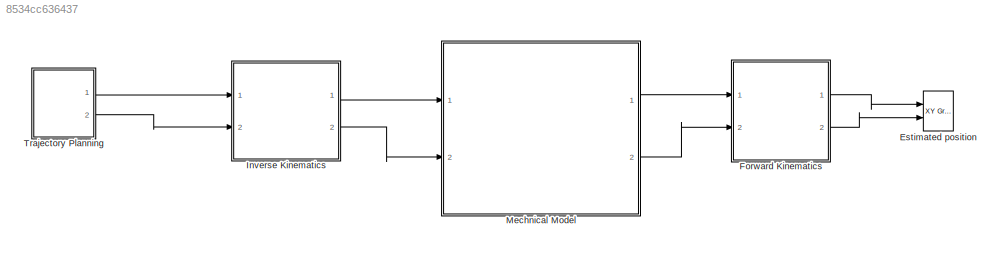
MODEL slx_8534cc636437
KIND model
CONFIG AbsTol = auto
CONFIG EnableMultiTasking = on
CONFIG FixedStep = auto
CONFIG MaxStep = auto
CONFIG MinStep = auto
CONFIG RelTol = 1e-3
CONFIG SampleTimeConstraint = Unconstrained
CONFIG Solver = VariableStepAuto
CONFIG SolverName = VariableStepAuto
CONFIG StartTime = 0.0
CONFIG StopTime = 10.0
BLOCK [Reference] Estimated position  REF=simulink/Sinks/XY Graph
  Ports = [2]
  SourceBlock = simulink/Sinks/XY Graph
  SourceProductBaseCode = SL
  SourceProductName = Simulink
  SourceType = XY scope.
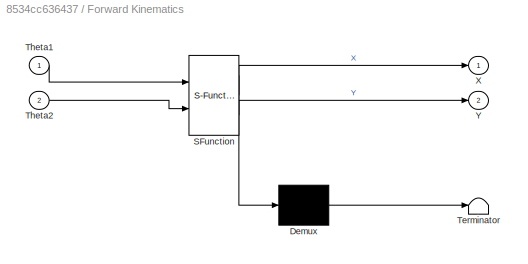
BLOCK [SubSystem] Forward Kinematics
  ErrorFcn = Stateflow.Translate.translate
  PermitHierarchicalResolution = ExplicitOnly
  Ports = [2, 2]
  RequestExecContextInheritance = off
  SFBlockType = MATLAB Function
  TreatAsAtomicUnit = on
BLOCK [Demux] Forward Kinematics/ Demux 
  Outputs = 1
  Ports = [1, 1]
BLOCK [S-Function] Forward Kinematics/ SFunction 
  EnableBusSupport = on
  FunctionName = sf_sfun
  PortCounts = [2 3]
  Ports = [2, 3]
  SFcnIsStateOwnerBlock = off
  SFunctionDeploymentMode = off
  Tag = Stateflow S-Function RR 2
BLOCK [Terminator] Forward Kinematics/ Terminator 
BLOCK [Inport] Forward Kinematics/Theta1
  IconDisplay = Port number
BLOCK [Inport] Forward Kinematics/Theta2
  IconDisplay = Port number
  Port = 2
BLOCK [Outport] Forward Kinematics/X
  IconDisplay = Port number
BLOCK [Outport] Forward Kinematics/Y
  IconDisplay = Port number
  Port = 2
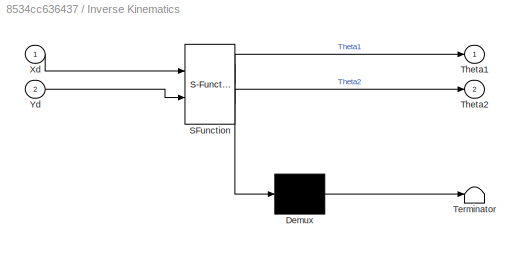
BLOCK [SubSystem] Inverse Kinematics
  ErrorFcn = Stateflow.Translate.translate
  PermitHierarchicalResolution = ExplicitOnly
  Ports = [2, 2]
  RequestExecContextInheritance = off
  SFBlockType = MATLAB Function
  TreatAsAtomicUnit = on
BLOCK [Demux] Inverse Kinematics/ Demux 
  Outputs = 1
  Ports = [1, 1]
BLOCK [S-Function] Inverse Kinematics/ SFunction 
  EnableBusSupport = on
  FunctionName = sf_sfun
  PortCounts = [2 3]
  Ports = [2, 3]
  SFcnIsStateOwnerBlock = off
  SFunctionDeploymentMode = off
  Tag = Stateflow S-Function RR 1
BLOCK [Terminator] Inverse Kinematics/ Terminator 
BLOCK [Outport] Inverse Kinematics/Theta1
  IconDisplay = Port number
BLOCK [Outport] Inverse Kinematics/Theta2
  IconDisplay = Port number
  Port = 2
BLOCK [Inport] Inverse Kinematics/Xd
  IconDisplay = Port number
BLOCK [Inport] Inverse Kinematics/Yd
  IconDisplay = Port number
  Port = 2
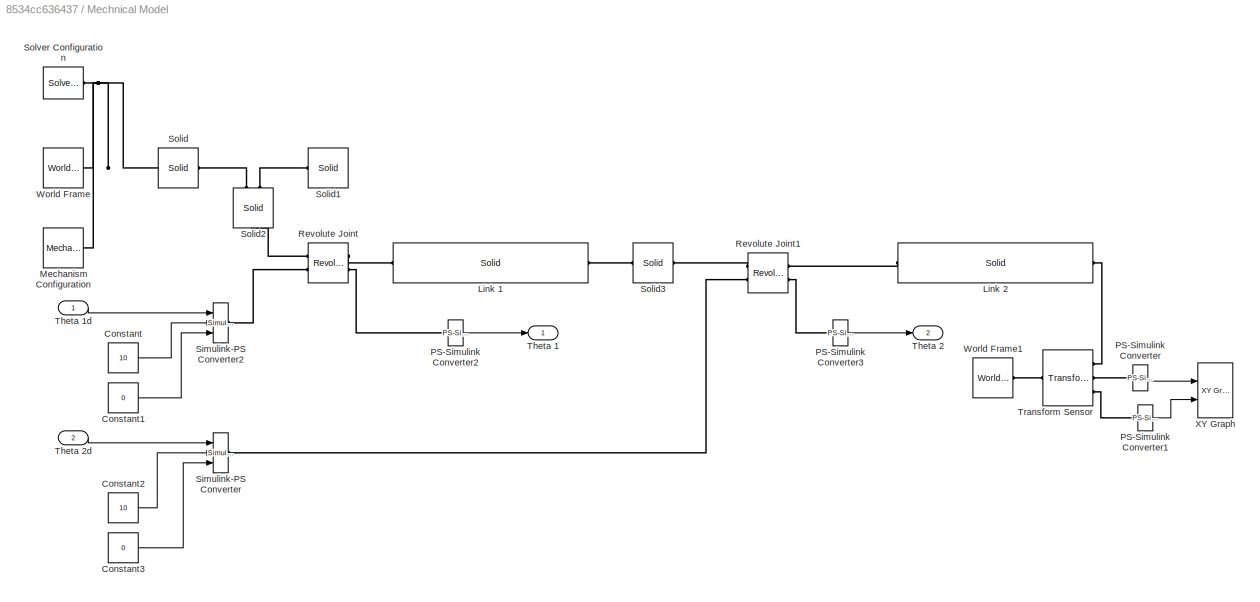
BLOCK [SubSystem] Mechnical Model 
  Ports = [2, 2]
  RequestExecContextInheritance = off
BLOCK [Constant] Mechnical Model /Constant
  Value = 10
BLOCK [Constant] Mechnical Model /Constant1
  Value = 0
BLOCK [Constant] Mechnical Model /Constant2
  Value = 10
BLOCK [Constant] Mechnical Model /Constant3
  Value = 0
BLOCK [Reference] Mechnical Model /Link 1  REF=sm_lib/Body Elements/Solid
  Ports = [0, 0, 0, 0, 0, 1, 1]
  SourceBlock = sm_lib/Body Elements/Solid
  SourceProductBaseCode = MS
  SourceProductName = Simscape Multibody
  SourceType = Solid
BLOCK [Reference] Mechnical Model /Link 2  REF=sm_lib/Body Elements/Solid
  Ports = [0, 0, 0, 0, 0, 1, 1]
  SourceBlock = sm_lib/Body Elements/Solid
  SourceProductBaseCode = MS
  SourceProductName = Simscape Multibody
  SourceType = Solid
BLOCK [Reference] Mechnical Model /Mechanism Configuration  REF=sm_lib/Utilities/Mechanism
Configuration
  Ports = [0, 0, 0, 0, 0, 0, 1]
  SourceBlock = sm_lib/Utilities/Mechanism\nConfiguration
  SourceProductBaseCode = MS
  SourceProductName = Simscape Multibody
  SourceType = Mechanism\nConfiguration
BLOCK [Reference] Mechnical Model /PS-Simulink Converter  REF=nesl_utility/PS-Simulink
Converter
  Ports = [0, 1, 0, 0, 0, 1]
  SourceBlock = nesl_utility/PS-Simulink\nConverter
  SourceProductBaseCode = SS
  SourceProductName = Simscape
  SourceType = PS-Simulink\nConverter
BLOCK [Reference] Mechnical Model /PS-Simulink Converter1  REF=nesl_utility/PS-Simulink
Converter
  Ports = [0, 1, 0, 0, 0, 1]
  SourceBlock = nesl_utility/PS-Simulink\nConverter
  SourceProductBaseCode = SS
  SourceProductName = Simscape
  SourceType = PS-Simulink\nConverter
BLOCK [Reference] Mechnical Model /PS-Simulink Converter2  REF=nesl_utility/PS-Simulink
Converter
  Ports = [0, 1, 0, 0, 0, 1]
  SourceBlock = nesl_utility/PS-Simulink\nConverter
  SourceProductBaseCode = SS
  SourceProductName = Simscape
  SourceType = PS-Simulink\nConverter
BLOCK [Reference] Mechnical Model /PS-Simulink Converter3  REF=nesl_utility/PS-Simulink
Converter
  Ports = [0, 1, 0, 0, 0, 1]
  SourceBlock = nesl_utility/PS-Simulink\nConverter
  SourceProductBaseCode = SS
  SourceProductName = Simscape
  SourceType = PS-Simulink\nConverter
BLOCK [Reference] Mechnical Model /Revolute Joint  REF=sm_lib/Joints/Revolute Joint
  Ports = [0, 0, 0, 0, 0, 2, 2]
  SourceBlock = sm_lib/Joints/Revolute Joint
  SourceProductBaseCode = MS
  SourceProductName = Simscape Multibody
  SourceType = Revolute Joint
BLOCK [Reference] Mechnical Model /Revolute Joint1  REF=sm_lib/Joints/Revolute Joint
  Ports = [0, 0, 0, 0, 0, 2, 2]
  SourceBlock = sm_lib/Joints/Revolute Joint
  SourceProductBaseCode = MS
  SourceProductName = Simscape Multibody
  SourceType = Revolute Joint
BLOCK [Reference] Mechnical Model /Simulink-PS Converter  REF=nesl_utility/Simulink-PS
Converter
  Ports = [3, 0, 0, 0, 0, 0, 1]
  SourceBlock = nesl_utility/Simulink-PS\nConverter
  SourceProductBaseCode = SS
  SourceProductName = Simscape
  SourceType = Simulink-PS\nConverter
BLOCK [Reference] Mechnical Model /Simulink-PS Converter2  REF=nesl_utility/Simulink-PS
Converter
  Ports = [3, 0, 0, 0, 0, 0, 1]
  SourceBlock = nesl_utility/Simulink-PS\nConverter
  SourceProductBaseCode = SS
  SourceProductName = Simscape
  SourceType = Simulink-PS\nConverter
BLOCK [Reference] Mechnical Model /Solid  REF=sm_lib/Body Elements/Solid
  Ports = [0, 0, 0, 0, 0, 1, 1]
  SourceBlock = sm_lib/Body Elements/Solid
  SourceProductBaseCode = MS
  SourceProductName = Simscape Multibody
  SourceType = Solid
BLOCK [Reference] Mechnical Model /Solid1  REF=sm_lib/Body Elements/Solid
  Ports = [0, 0, 0, 0, 0, 1]
  SourceBlock = sm_lib/Body Elements/Solid
  SourceProductBaseCode = MS
  SourceProductName = Simscape Multibody
  SourceType = Solid
BLOCK [Reference] Mechnical Model /Solid2  REF=sm_lib/Body Elements/Solid
  Ports = [0, 0, 0, 0, 0, 2, 1]
  SourceBlock = sm_lib/Body Elements/Solid
  SourceProductBaseCode = MS
  SourceProductName = Simscape Multibody
  SourceType = Solid
BLOCK [Reference] Mechnical Model /Solid3  REF=sm_lib/Body Elements/Solid
  Ports = [0, 0, 0, 0, 0, 1, 1]
  SourceBlock = sm_lib/Body Elements/Solid
  SourceProductBaseCode = MS
  SourceProductName = Simscape Multibody
  SourceType = Solid
BLOCK [Reference] Mechnical Model /Solver Configuration  REF=nesl_utility/Solver
Configuration
  Ports = [0, 0, 0, 0, 0, 0, 1]
  SourceBlock = nesl_utility/Solver\nConfiguration
  SourceProductBaseCode = SS
  SourceProductName = Simscape
  SourceType = Solver\nConfiguration
BLOCK [Outport] Mechnical Model /Theta 1
  IconDisplay = Port number
BLOCK [Inport] Mechnical Model /Theta 1d
  IconDisplay = Port number
BLOCK [Outport] Mechnical Model /Theta 2
  IconDisplay = Port number
  Port = 2
BLOCK [Inport] Mechnical Model /Theta 2d
  IconDisplay = Port number
  Port = 2
BLOCK [Reference] Mechnical Model /Transform Sensor  REF=sm_lib/Frames and
Transforms/Transform
Sensor
  Ports = [0, 0, 0, 0, 0, 1, 3]
  SourceBlock = sm_lib/Frames and\nTransforms/Transform\nSensor
  SourceProductBaseCode = MS
  SourceProductName = Simscape Multibody
  SourceType = Transform\nSensor
BLOCK [Reference] Mechnical Model /World Frame  REF=sm_lib/Frames and
Transforms/World Frame
  Ports = [0, 0, 0, 0, 0, 0, 1]
  SourceBlock = sm_lib/Frames and\nTransforms/World Frame
  SourceProductBaseCode = MS
  SourceProductName = Simscape Multibody
  SourceType = World Frame
BLOCK [Reference] Mechnical Model /World Frame1  REF=sm_lib/Frames and
Transforms/World Frame
  Ports = [0, 0, 0, 0, 0, 0, 1]
  SourceBlock = sm_lib/Frames and\nTransforms/World Frame
  SourceProductBaseCode = MS
  SourceProductName = Simscape Multibody
  SourceType = World Frame
BLOCK [Reference] Mechnical Model /XY Graph  REF=simulink/Sinks/XY Graph
  Ports = [2]
  SourceBlock = simulink/Sinks/XY Graph
  SourceProductBaseCode = SL
  SourceProductName = Simulink
  SourceType = XY scope.
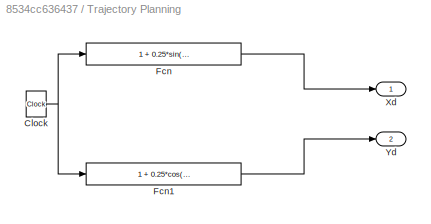
BLOCK [SubSystem] Trajectory Planning
  Ports = [0, 2]
  RequestExecContextInheritance = off
BLOCK [Clock] Trajectory Planning/Clock
BLOCK [Fcn] Trajectory Planning/Fcn
  Expr = 1 + 0.25*sin((2*pi/5)*u + pi/2)
BLOCK [Fcn] Trajectory Planning/Fcn1
  Expr = 1 + 0.25*cos((2*pi/5)*u + pi/2)
BLOCK [Outport] Trajectory Planning/Xd
  IconDisplay = Port number
BLOCK [Outport] Trajectory Planning/Yd
  IconDisplay = Port number
  Port = 2
LINE Forward Kinematics:1 -> Estimated position:1
LINE Forward Kinematics:2 -> Estimated position:2
LINE Inverse Kinematics:1 -> Mechnical Model :1
LINE Inverse Kinematics:2 -> Mechnical Model :2
LINE Mechnical Model /Constant1:1 -> Mechnical Model /Simulink-PS Converter2:3
LINE Mechnical Model /Constant2:1 -> Mechnical Model /Simulink-PS Converter:2
LINE Mechnical Model /Constant3:1 -> Mechnical Model /Simulink-PS Converter:3
LINE Mechnical Model /Constant:1 -> Mechnical Model /Simulink-PS Converter2:2
LINE Mechnical Model /PS-Simulink Converter1:1 -> Mechnical Model /XY Graph:2
LINE Mechnical Model /PS-Simulink Converter2:1 -> Mechnical Model /Theta 1:1
LINE Mechnical Model /PS-Simulink Converter3:1 -> Mechnical Model /Theta 2:1
LINE Mechnical Model /PS-Simulink Converter:1 -> Mechnical Model /XY Graph:1
LINE Mechnical Model /Theta 1d:1 -> Mechnical Model /Simulink-PS Converter2:1
LINE Mechnical Model /Theta 2d:1 -> Mechnical Model /Simulink-PS Converter:1
LINE Mechnical Model :1 -> Forward Kinematics:1
LINE Mechnical Model :2 -> Forward Kinematics:2
NET Trajectory Planning/Clock:1 -> Trajectory Planning/Fcn1:1, Trajectory Planning/Fcn:1
LINE Trajectory Planning/Fcn1:1 -> Trajectory Planning/Yd:1
LINE Trajectory Planning/Fcn:1 -> Trajectory Planning/Xd:1
LINE Trajectory Planning:1 -> Inverse Kinematics:1
LINE Trajectory Planning:2 -> Inverse Kinematics:2
PLINE Mechnical Model /Link 1:LConn1 -- Mechnical Model /Revolute Joint:RConn1
PLINE Mechnical Model /Link 1:RConn1 -- Mechnical Model /Solid3:LConn1
PLINE Mechnical Model /Link 2:LConn1 -- Mechnical Model /Revolute Joint1:RConn1
PLINE Mechnical Model /Link 2:RConn1 -- Mechnical Model /Transform Sensor:RConn1
PNET net1: Mechnical Model /Mechanism Configuration:RConn1 -- Mechnical Model /Solid:RConn1 -- Mechnical Model /Solver Configuration:RConn1 -- Mechnical Model /World Frame:RConn1
PLINE Mechnical Model /PS-Simulink Converter1:LConn1 -- Mechnical Model /Transform Sensor:RConn3
PLINE Mechnical Model /PS-Simulink Converter2:LConn1 -- Mechnical Model /Revolute Joint:RConn2
PLINE Mechnical Model /PS-Simulink Converter3:LConn1 -- Mechnical Model /Revolute Joint1:RConn2
PLINE Mechnical Model /PS-Simulink Converter:LConn1 -- Mechnical Model /Transform Sensor:RConn2
PLINE Mechnical Model /Revolute Joint1:LConn1 -- Mechnical Model /Solid3:RConn1
PLINE Mechnical Model /Revolute Joint1:LConn2 -- Mechnical Model /Simulink-PS Converter:RConn1
PLINE Mechnical Model /Revolute Joint:LConn1 -- Mechnical Model /Solid2:RConn1
PLINE Mechnical Model /Revolute Joint:LConn2 -- Mechnical Model /Simulink-PS Converter2:RConn1
PLINE Mechnical Model /Solid1:LConn1 -- Mechnical Model /Solid2:LConn2
PLINE Mechnical Model /Solid2:LConn1 -- Mechnical Model /Solid:LConn1
PLINE Mechnical Model /Transform Sensor:LConn1 -- Mechnical Model /World Frame1:RConn1
note: NET lines group one-source signal fan-out (src -> all destinations, sorted); 1:1 wires keep LINE; PNET lines group multi-terminal physical nets as a canonical sorted terminal list (undirected conserving connections); 2-terminal nets keep the pairwise PLINE form
CHART Inverse Kinematics states=1 transitions=1
  STATE_LABEL 'eML_blk_kernel()'
  STATE_LABEL 'SCRIPT:\nfunction [Theta1,Theta2] = InverseKinematics(Xd,Yd)\n\nl1 = 1;\nl2 = 1;\n\nTheta2 = acos((Xd^2+Yd^2 - l1^2 - l2^2)/(2*l1*l2));\n\ns_Theta2 = sin(Theta2);\nc_Theta2 = cos(Theta2);\n\nTheta1 = atan2(Yd,Xd) - atan2(l2*s_Theta2, (l1+l2*c_Theta2));\n'
CHART Forward Kinematics states=1 transitions=1
  STATE_LABEL 'eML_blk_kernel()'
  STATE_LABEL 'SCRIPT:\nfunction [X,Y] = Forwardkinematics(Theta1, Theta2)\n\nl1 = 1;\nl2 = 1;\n\nT10 = [cos(Theta1), -sin(Theta1), 0, l1*cos(Theta1);\n    sin(Theta1), cos(Theta1), 0, l1*sin(Theta1);\n    0, 0, 1, 0;\n    0, 0, 0, 1];\n\nT21 = [cos(Theta2), -sin(Theta2), 0, l1*cos(Theta2);\n    sin(Theta2), cos(Theta2), 0, l1*sin(Theta2);\n    0, 0, 1, 0;\n    0, 0, 0, 1];\n\nT20 = T10*T21;\n\nX = T20(1,4);\nY = T20(2,4);\n'
